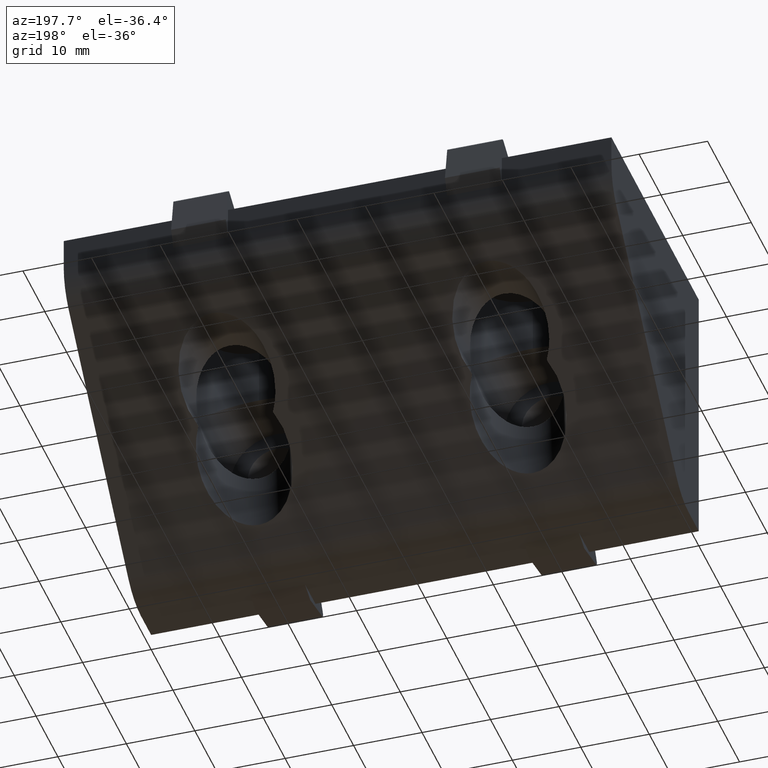
[diagram: clean part render]
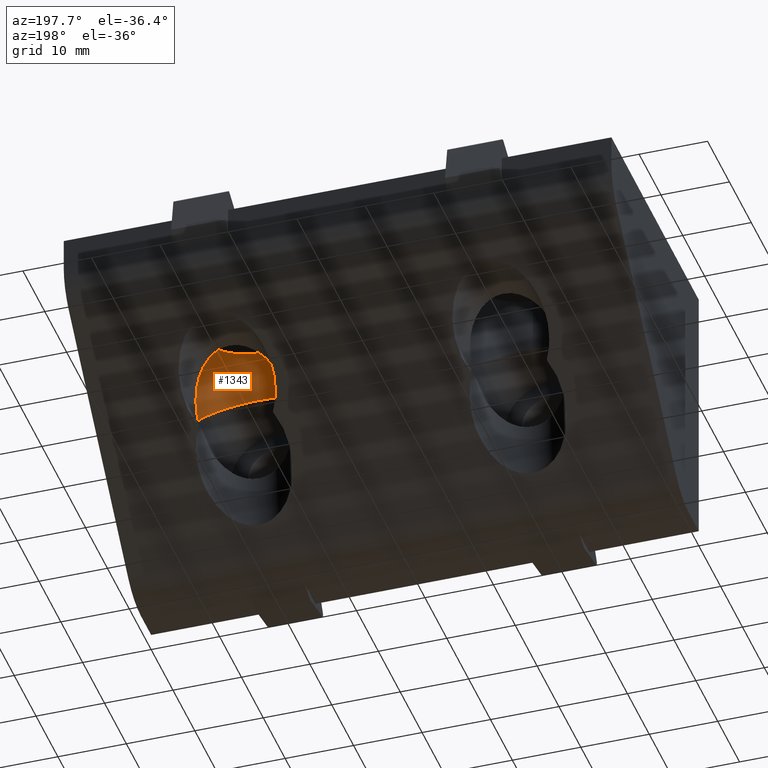
[diagram: same view with one face highlighted and labeled with its STEP entity id]
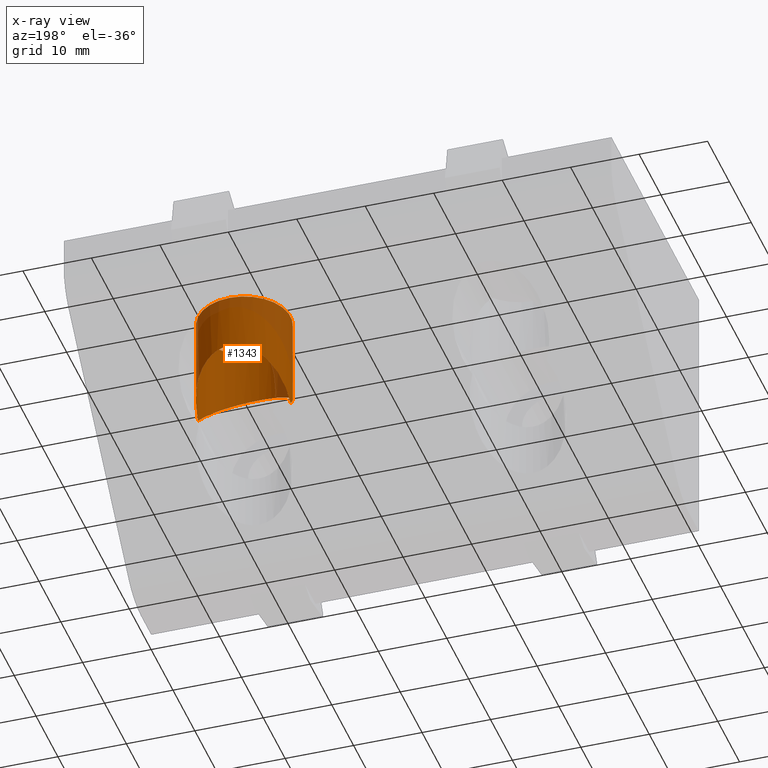
[diagram: x-ray of the same camera — body ghosted, the highlighted face saturated]
A machine part, auxiliary view. The second image highlights one B-rep face of the part: STEP entity #1343.
The next image is the same camera in x-ray: the body ghosted, the highlighted face saturated — about 21% of this face is hidden behind the body in this view.
In plain terms, the highlighted cylindrical surface (bore or boss wall) has radius 6.75 mm, axis along (0, 0, -1).
Its self-contained STEP definition (entity closure, byte-faithful):
#1197=CARTESIAN_POINT('',(19.999998419919088,13.249997058446894,-4.999998889979906));
#1198=VERTEX_POINT('',#1197);
#1199=CARTESIAN_POINT('',(19.999998419919088,26.749994061393267,-4.999998889979906));
#1200=VERTEX_POINT('',#1199);
#1201=CARTESIAN_POINT('',(19.999998419919088,19.999995559920080,-4.999998889979906));
#1202=DIRECTION('',(0.0,0.0,-1.0));
#1203=DIRECTION('',(0.0,-1.0,0.0));
#1204=AXIS2_PLACEMENT_3D('',#1201,#1202,#1203);
#1205=CIRCLE('',#1204,6.749998501473186);
#1206=EDGE_CURVE('',#1198,#1200,#1205,.T.);
#1208=CARTESIAN_POINT('',(19.999998419919088,19.999995559920080,-4.999998889979906));
#1209=DIRECTION('',(0.0,0.0,-1.0));
#1210=DIRECTION('',(0.0,-1.0,0.0));
#1211=AXIS2_PLACEMENT_3D('',#1208,#1209,#1210);
#1212=CIRCLE('',#1211,6.749998501473186);
#1213=EDGE_CURVE('',#1200,#1198,#1212,.T.);
#1222=CARTESIAN_POINT('',(19.999998419919088,19.999995559920080,-4.999998889979906));
#1223=DIRECTION('',(0.0,0.0,-1.0));
#1224=DIRECTION('',(0.0,-1.0,0.0));
#1225=AXIS2_PLACEMENT_3D('',#1222,#1223,#1224);
#1226=CYLINDRICAL_SURFACE('',#1225,6.749998501473186);
#1227=CARTESIAN_POINT('',(19.999998419919088,13.249997058446896,-13.249989428467934));
#1228=VERTEX_POINT('',#1227);
#1229=CARTESIAN_POINT('',(19.999998419919088,13.249997058446894,-4.999998889979906));
#1230=DIRECTION('',(0.0,0.0,-1.0));
#1231=VECTOR('',#1230,8.249990538488028);
#1232=LINE('',#1229,#1231);
#1233=EDGE_CURVE('',#1198,#1228,#1232,.T.);
#1234=ORIENTED_EDGE('',*,*,#1233,.T.);
#1235=CARTESIAN_POINT('',(20.000091286149274,26.749995335546590,-13.249988154311279));
#1236=VERTEX_POINT('',#1235);
#1237=CARTESIAN_POINT('',(19.999998419919088,13.249997058446894,-13.249989428467934));
#1238=CARTESIAN_POINT('',(19.820393710549624,13.249997058446894,-13.249989428467934));
#1239=CARTESIAN_POINT('',(19.378011930974914,13.267698458312340,-13.267690818365590));
#1240=CARTESIAN_POINT('',(18.446003020757345,13.397461106541837,-13.397453392444831));
#1241=CARTESIAN_POINT('',(17.337371878308510,13.750822658735208,-13.750814732642816));
#1242=CARTESIAN_POINT('',(16.298929069725833,14.322251592291842,-14.322243258143217));
#1243=CARTESIAN_POINT('',(15.581936760001483,14.876850514915297,-14.876841691067471));
#1244=CARTESIAN_POINT('',(15.119221816588798,15.327973191278765,-15.327963877101599));
#1245=CARTESIAN_POINT('',(14.695016787727138,15.808534316511171,-15.808524383938263));
#1246=CARTESIAN_POINT('',(14.346894324088094,16.289903656570630,-16.289892969990923));
#1247=CARTESIAN_POINT('',(14.035588303751673,16.826733819593485,-16.826721925100799));
#1248=CARTESIAN_POINT('',(13.848633768355867,17.211404257870981,-17.211391309919364));
#1249=CARTESIAN_POINT('',(13.671518916870760,17.637423710131031,-17.637408958575932));
#1250=CARTESIAN_POINT('',(13.536598944933008,18.034275459265196,-18.034259737670020));
#1251=CARTESIAN_POINT('',(13.424956451117332,18.458647266729059,-18.458624968281729));
#1252=CARTESIAN_POINT('',(13.359759647209302,18.775113238330302,-18.775095460178498));
#1253=CARTESIAN_POINT('',(13.315489301144162,19.051883908134805,-19.051837785622773));
#1254=CARTESIAN_POINT('',(13.291026844677123,19.249511063587022,-19.249520315662842));
#1255=CARTESIAN_POINT('',(13.275697401321938,19.407563323757500,-19.407435938328707));
#1256=CARTESIAN_POINT('',(13.266309797983940,19.526070382943200,-19.526320873769311));
#1257=CARTESIAN_POINT('',(13.259018456144744,19.644469192284323,-19.643246708170029));
#1258=CARTESIAN_POINT('',(13.253811753738976,19.763256711689369,-19.767435341276229));
#1259=CARTESIAN_POINT('',(13.250732229497356,19.879454216133318,-19.863491129078671));
#1260=CARTESIAN_POINT('',(13.249639080568834,19.999995559919789,-20.056538199255122));
#1261=CARTESIAN_POINT('',(13.250732229496961,20.120536903708022,-19.863491129077698));
#1262=CARTESIAN_POINT('',(13.253811753740599,20.236734408146543,-19.767435341280247));
#1263=CARTESIAN_POINT('',(13.259018456138666,20.355521927571640,-19.643246708154962));
#1264=CARTESIAN_POINT('',(13.266309798006667,20.473920736837954,-19.526320873825597));
#1265=CARTESIAN_POINT('',(13.275697401237036,20.592427796303102,-19.407435938118436));
#1266=CARTESIAN_POINT('',(13.291026845128727,20.750480055080608,-19.249520316781229));
#1267=CARTESIAN_POINT('',(13.315489297494921,20.948107221180081,-19.051837776585636));
#1268=CARTESIAN_POINT('',(13.359759663442876,21.224877839361685,-18.775095500380047));
#1269=CARTESIAN_POINT('',(13.424956355483531,21.541344101411742,-18.458624731448886));
#1270=CARTESIAN_POINT('',(13.544213823395349,21.994658018887318,-18.005317770389105));
#1271=CARTESIAN_POINT('',(13.704661632512877,22.456635661502325,-17.543341084858998));
#1272=CARTESIAN_POINT('',(13.927485021814388,22.960648171961040,-17.039330559127908));
#1273=CARTESIAN_POINT('',(14.181859692583892,23.440128646663176,-16.559851209787659));
#1274=CARTESIAN_POINT('',(14.607399423813600,24.093418011726605,-15.906563085141503));
#1275=CARTESIAN_POINT('',(15.169627472305017,24.748983398419689,-15.250998515563126));
#1276=CARTESIAN_POINT('',(16.021434170975944,25.491167697903109,-14.508814945183829));
#1277=CARTESIAN_POINT('',(16.874806154462867,26.020369038130795,-13.979613997320794));
#1278=CARTESIAN_POINT('',(17.963850409493858,26.461499044706095,-13.538484278508866));
#1279=CARTESIAN_POINT('',(18.928442478278175,26.696322205057218,-13.303661254663584));
#1280=CARTESIAN_POINT('',(19.681782799478317,26.749993322488166,-13.249990167356261));
#1281=CARTESIAN_POINT('',(20.000091286149274,26.749995335546590,-13.249988154311279));
#1282=B_SPLINE_CURVE_WITH_KNOTS('',3,(#1237,#1238,#1239,#1240,#1241,#1242,#1243,#1244,#1245,#1246,#1247,#1248,#1249,#1250,#1251,#1252,#1253,#1254,#1255,#1256,#1257,#1258,#1259,#1260,#1261,#1262,#1263,#1264,#1265,#1266,#1267,#1268,#1269,#1270,#1271,#1272,#1273,#1274,#1275,#1276,#1277,#1278,#1279,#1280,#1281),.UNSPECIFIED.,.F.,.U.,(4,1,1,1,1,1,1,1,1,1,1,1,1,1,1,1,1,1,1,1,1,1,1,1,1,1,1,1,1,1,1,1,1,1,1,1,1,1,1,1,1,1,4),(0.0,0.539081213596918,1.326695496417043,2.840035277583268,4.151706921437035,5.254611806897104,6.019984913599855,6.513780684534441,7.657144544209129,8.310137588951935,8.974364245271438,9.382123786417033,10.193785180283921,10.705100481138352,11.213090108221090,11.550332053166615,11.886715360339998,12.054654366879507,12.222459981833707,12.390156322223111,12.557762044025377,12.725264924369748,12.887972188165056,13.050679451960365,13.218182332304735,13.385788054107001,13.553484394496401,13.721290009450613,13.889229015990109,14.225612323163494,14.562854268109014,15.070843895191764,15.582159196048842,16.518698735025335,17.087624337635738,17.821888263034616,18.690201580889635,20.136813446438950,21.064805781785051,22.739553024633636,23.516414668748737,24.821124126270732,25.776092787975244),.UNSPECIFIED.);
#1283=EDGE_CURVE('',#1228,#1236,#1282,.T.);
#1284=ORIENTED_EDGE('',*,*,#1283,.T.);
#1285=CARTESIAN_POINT('',(20.000091286149274,26.749995335546590,-13.249988154311279));
#1286=CARTESIAN_POINT('',(20.021458295769516,26.749995470676630,-13.249988019182139));
#1287=CARTESIAN_POINT('',(20.416134803505635,26.748110240725900,-13.251873248091051));
#1288=CARTESIAN_POINT('',(21.089012463596443,26.685141504157357,-13.314841949490202));
#1289=CARTESIAN_POINT('',(22.010220469315268,26.462920034590393,-13.537063287735167));
#1290=CARTESIAN_POINT('',(22.907975093300060,26.120372317056407,-13.879610786816695));
#1291=CARTESIAN_POINT('',(23.889427833492924,25.562352199923367,-14.437630497304321));
#1292=CARTESIAN_POINT('',(24.670252462676068,24.905890936831916,-15.094091157098131));
#1293=CARTESIAN_POINT('',(25.240600270993504,24.270670768604440,-15.729310533880222));
#1294=CARTESIAN_POINT('',(25.571480214740063,23.822264239304399,-16.177716357643227));
#1295=CARTESIAN_POINT('',(25.909534492629586,23.283520516227046,-16.716459014109795));
#1296=CARTESIAN_POINT('',(26.171283613935927,22.762840602569071,-17.237137527170127));
#1297=CARTESIAN_POINT('',(26.366347127787272,22.254529586630674,-17.745446451800348));
#1298=CARTESIAN_POINT('',(26.463862593278272,21.949369085894908,-18.050604986581572));
#1299=CARTESIAN_POINT('',(26.523736602288217,21.736423257753767,-18.263549476381037));
#1300=CARTESIAN_POINT('',(26.561941994112651,21.584359570572119,-18.415610914075874));
#1301=CARTESIAN_POINT('',(26.614192107312071,21.356423569336826,-18.643547465448524));
#1302=CARTESIAN_POINT('',(26.656049405142227,21.135457769133801,-18.864470835225955));
#1303=CARTESIAN_POINT('',(26.696752392184258,20.855438400164182,-19.144578668242350));
#1304=CARTESIAN_POINT('',(26.716875249101953,20.677153590891862,-19.322498475748954));
#1305=CARTESIAN_POINT('',(26.730486690672063,20.516589029023166,-19.483751191611450));
#1306=CARTESIAN_POINT('',(26.737848095926630,20.409439764511589,-19.588944077397990));
#1307=CARTESIAN_POINT('',(26.744282422569867,20.287942896840121,-19.718723325752148));
#1308=CARTESIAN_POINT('',(26.748809993864217,20.151139155977713,-19.812036552351238));
#1309=CARTESIAN_POINT('',(26.750118702009114,20.046660969040616,-20.039185430335493));
#1310=CARTESIAN_POINT('',(26.749947158042961,19.968687763475316,-19.968390110248524));
#1311=CARTESIAN_POINT('',(26.749502639085193,19.902992686926684,-19.902311338453440));
#1312=CARTESIAN_POINT('',(26.747393450711169,19.793852183525800,-19.793929312903451));
#1313=CARTESIAN_POINT('',(26.741335032925797,19.647930438536417,-19.647805792586055));
#1314=CARTESIAN_POINT('',(26.732079459659019,19.501198934950864,-19.501158635320376));
#1315=CARTESIAN_POINT('',(26.719615198504830,19.354670624859125,-19.354623869300369));
#1316=CARTESIAN_POINT('',(26.703924337034376,19.208085794516364,-19.208050792931914));
#1317=CARTESIAN_POINT('',(26.678649846499862,19.012496766510100,-19.012466804102367));
#1318=CARTESIAN_POINT('',(26.646826461200213,18.817028295454215,-18.817003020961323));
#1319=CARTESIAN_POINT('',(26.598691471908399,18.572689408624520,-18.572667679734103));
#1320=CARTESIAN_POINT('',(26.541968925625699,18.327984458525037,-18.327965405550529));
#1321=CARTESIAN_POINT('',(26.459977322515336,18.034682549312439,-18.034665723927443));
#1322=CARTESIAN_POINT('',(26.366109479228165,17.749491780425085,-17.749476581617930));
#1323=CARTESIAN_POINT('',(26.248993388123029,17.440355249311590,-17.440341427256293));
#1324=CARTESIAN_POINT('',(25.985596241657490,16.838793100106887,-16.838781352086198));
#1325=CARTESIAN_POINT('',(25.629209320574244,16.238014455938341,-16.238003862871381));
#1326=CARTESIAN_POINT('',(25.158165087916558,15.637836217114838,-15.637826513326745));
#1327=CARTESIAN_POINT('',(24.850717085077907,15.297025478366660,-15.297016198067144));
#1328=CARTESIAN_POINT('',(24.363571473839770,14.832014933034914,-14.832006152101998));
#1329=CARTESIAN_POINT('',(23.799852482979350,14.398700964078596,-14.398692561676535));
#1330=CARTESIAN_POINT('',(22.933021342463235,13.893764362356110,-13.893756338702357));
#1331=CARTESIAN_POINT('',(21.974657884791473,13.505469487917622,-13.505461711106491));
#1332=CARTESIAN_POINT('',(20.899049102432638,13.286976161776463,-13.286968511012892));
#1333=CARTESIAN_POINT('',(20.258726573290453,13.249997058446894,-13.249989428467934));
#1334=CARTESIAN_POINT('',(19.999998419919088,13.249997058446894,-13.249989428467934));
#1335=B_SPLINE_CURVE_WITH_KNOTS('',3,(#1285,#1286,#1287,#1288,#1289,#1290,#1291,#1292,#1293,#1294,#1295,#1296,#1297,#1298,#1299,#1300,#1301,#1302,#1303,#1304,#1305,#1306,#1307,#1308,#1309,#1310,#1311,#1312,#1313,#1314,#1315,#1316,#1317,#1318,#1319,#1320,#1321,#1322,#1323,#1324,#1325,#1326,#1327,#1328,#1329,#1330,#1331,#1332,#1333,#1334),.UNSPECIFIED.,.F.,.U.,(4,1,1,1,1,1,1,1,1,1,1,1,1,1,1,1,1,1,1,1,1,1,1,1,1,1,1,1,1,1,1,1,1,1,1,1,1,1,1,1,1,1,1,1,1,1,1,4),(25.776092787975244,25.840196716824508,26.960191533882444,27.798726904106502,28.750473198514932,30.009639784215658,31.559226510072634,32.372749497238630,33.199114070792213,33.703196129358354,34.872631791389608,35.540518584049963,35.936954719324397,36.199781494929852,36.461598530456037,36.592168621478891,37.179432648307888,37.407188337839933,37.786388613416008,37.938086218170703,38.089687776155714,38.241209463808602,38.455031128933705,38.663963927974208,38.701507565310145,38.742951861740856,38.950013859969872,39.157326338504120,39.364778442499770,39.572405335816846,39.780253940093793,39.988374681068592,40.405644960134573,40.614905864511279,41.034975591191767,41.457539042198420,41.883165157733721,42.277080732004030,42.815132120546082,44.554332674294642,45.032236561446553,45.726325711255278,46.268155923805395,47.486336597464913,48.216145272256952,49.632709786956497,50.775163844869809,51.552185575950489),.UNSPECIFIED.);
#1336=EDGE_CURVE('',#1236,#1228,#1335,.T.);
#1337=ORIENTED_EDGE('',*,*,#1336,.T.);
#1338=ORIENTED_EDGE('',*,*,#1233,.F.);
#1339=ORIENTED_EDGE('',*,*,#1213,.F.);
#1340=ORIENTED_EDGE('',*,*,#1206,.F.);
#1341=EDGE_LOOP('',(#1234,#1284,#1337,#1338,#1339,#1340));
#1342=FACE_OUTER_BOUND('',#1341,.T.);
#1343=ADVANCED_FACE('',(#1342),#1226,.F.);